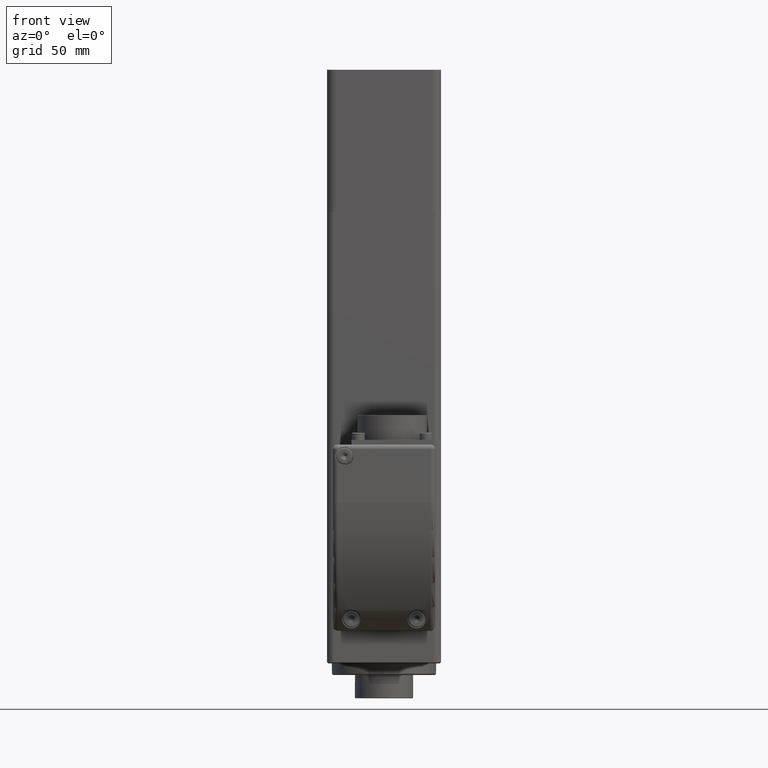
[diagram: clean part render]
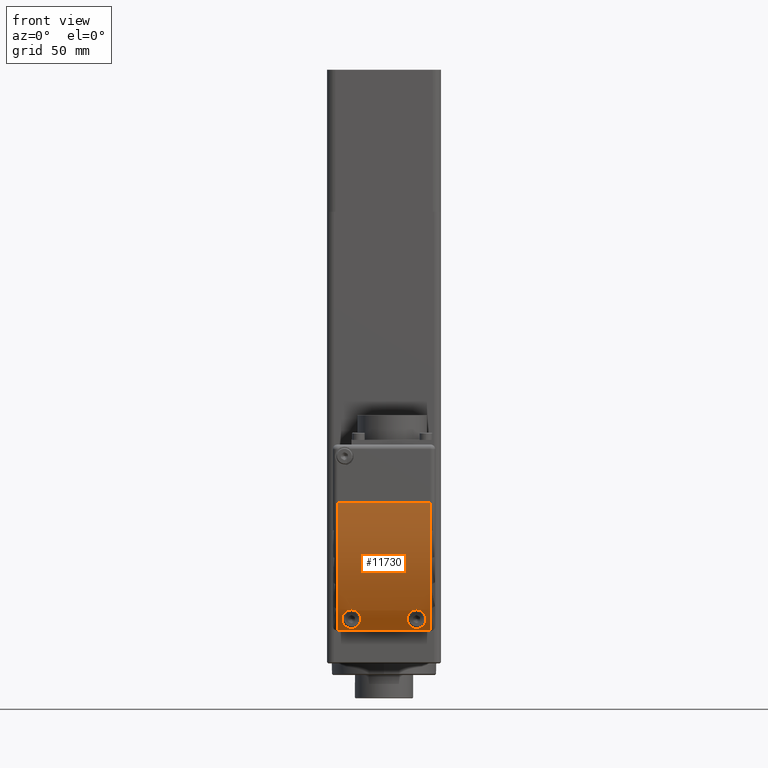
[diagram: same view with one face highlighted and labeled with its STEP entity id]
A machine part, front view. The second image highlights one B-rep face of the part: STEP entity #11730.
In plain terms, the highlighted cylindrical surface (partial cylindrical patch) has radius 80 mm, axis along (1, -0, 0).
Its self-contained STEP definition (entity closure, byte-faithful):
#235=B_SPLINE_CURVE_WITH_KNOTS('',3,(#19185,#19186,#19187,#19188,#19189,
#19190,#19191,#19192,#19193,#19194),.UNSPECIFIED.,.F.,.F.,(4,2,2,2,4),(0.,
0.148690668803476,0.297381337606952,0.489488008699081,0.681594679791209),
 .UNSPECIFIED.);
#236=B_SPLINE_CURVE_WITH_KNOTS('',3,(#19195,#19196,#19197,#19198,#19199,
#19200,#19201,#19202,#19203,#19204,#19205,#19206,#19207,#19208,#19209,#19210,
#19211,#19212,#19213,#19214,#19215,#19216,#19217,#19218,#19219,#19220),
 .UNSPECIFIED.,.F.,.F.,(4,2,2,2,2,2,2,2,2,2,2,2,4),(0.681594679791209,0.881767558495309,
1.08194043719941,1.23189418500287,1.38184793280633,1.53180168060979,1.68175542841325,
1.88192830711735,2.08210118582145,2.27420785691358,2.46631452800571,2.61500519680918,
2.76369586561266),.UNSPECIFIED.);
#237=B_SPLINE_CURVE_WITH_KNOTS('',3,(#19227,#19228,#19229,#19230,#19231,
#19232,#19233,#19234,#19235,#19236),.UNSPECIFIED.,.F.,.F.,(4,2,2,2,4),(0.,
0.148690668803476,0.297381337606952,0.489488008699081,0.681594679791209),
 .UNSPECIFIED.);
#238=B_SPLINE_CURVE_WITH_KNOTS('',3,(#19237,#19238,#19239,#19240,#19241,
#19242,#19243,#19244,#19245,#19246,#19247,#19248,#19249,#19250,#19251,#19252,
#19253,#19254,#19255,#19256,#19257,#19258,#19259,#19260,#19261,#19262),
 .UNSPECIFIED.,.F.,.F.,(4,2,2,2,2,2,2,2,2,2,2,2,4),(0.681594679791209,0.881767558495309,
1.08194043719941,1.23189418500287,1.38184793280633,1.53180168060979,1.68175542841325,
1.88192830711735,2.08210118582145,2.27420785691358,2.46631452800571,2.61500519680919,
2.76369586561266),.UNSPECIFIED.);
#352=FACE_BOUND('',#2387,.T.);
#353=FACE_BOUND('',#2388,.T.);
#508=CYLINDRICAL_SURFACE('',#12845,80.);
#1021=CIRCLE('',#12840,80.);
#1023=CIRCLE('',#12846,80.);
#1609=FACE_OUTER_BOUND('',#2386,.T.);
#2386=EDGE_LOOP('',(#9231,#9232,#9233,#9234));
#2387=EDGE_LOOP('',(#9235,#9236));
#2388=EDGE_LOOP('',(#9237,#9238));
#2730=LINE('',#16756,#3612);
#3297=LINE('',#19422,#4179);
#3612=VECTOR('',#13462,10.);
#4179=VECTOR('',#15555,10.);
#4485=VERTEX_POINT('',#16754);
#4486=VERTEX_POINT('',#16755);
#5122=VERTEX_POINT('',#19182);
#5123=VERTEX_POINT('',#19184);
#5125=VERTEX_POINT('',#19224);
#5126=VERTEX_POINT('',#19226);
#5152=VERTEX_POINT('',#19391);
#5154=VERTEX_POINT('',#19421);
#5570=EDGE_CURVE('',#4485,#4486,#2730,.T.);
#6529=EDGE_CURVE('',#5123,#5122,#235,.T.);
#6530=EDGE_CURVE('',#5122,#5123,#236,.T.);
#6533=EDGE_CURVE('',#5126,#5125,#237,.T.);
#6534=EDGE_CURVE('',#5125,#5126,#238,.T.);
#6578=EDGE_CURVE('',#5152,#4485,#1021,.T.);
#6584=EDGE_CURVE('',#5152,#5154,#3297,.T.);
#6585=EDGE_CURVE('',#4486,#5154,#1023,.T.);
#9231=ORIENTED_EDGE('',*,*,#5570,.F.);
#9232=ORIENTED_EDGE('',*,*,#6578,.F.);
#9233=ORIENTED_EDGE('',*,*,#6584,.T.);
#9234=ORIENTED_EDGE('',*,*,#6585,.F.);
#9235=ORIENTED_EDGE('',*,*,#6529,.T.);
#9236=ORIENTED_EDGE('',*,*,#6530,.T.);
#9237=ORIENTED_EDGE('',*,*,#6533,.T.);
#9238=ORIENTED_EDGE('',*,*,#6534,.T.);
#11730=ADVANCED_FACE('',(#1609,#352,#353),#508,.T.);
#12840=AXIS2_PLACEMENT_3D('',#19410,#15539,#15540);
#12845=AXIS2_PLACEMENT_3D('',#19420,#15553,#15554);
#12846=AXIS2_PLACEMENT_3D('',#19423,#15556,#15557);
#13462=DIRECTION('',(1.,-1.9423925436145E-32,1.38777878078145E-16));
#15539=DIRECTION('center_axis',(-1.,1.9423925436145E-32,-1.38777878078145E-16));
#15540=DIRECTION('ref_axis',(5.13492797797409E-17,-0.929027550025803,-0.370010555650855));
#15553=DIRECTION('center_axis',(1.,-1.9423925436145E-32,1.38777878078145E-16));
#15554=DIRECTION('ref_axis',(-2.49817464566039E-32,-1.,4.00483210827687E-17));
#15555=DIRECTION('',(1.,-1.9423925436145E-32,1.38777878078145E-16));
#15556=DIRECTION('center_axis',(1.,-1.9423925436145E-32,1.38777878078145E-16));
#15557=DIRECTION('ref_axis',(5.13492797797409E-17,-0.929027550025803,-0.370010555650855));
#16754=CARTESIAN_POINT('',(-20.,-125.,55.));
#16755=CARTESIAN_POINT('',(20.,-125.,55.));
#16756=CARTESIAN_POINT('',(3.49999999999999,-125.,55.));
#19182=CARTESIAN_POINT('',(-10.,-107.449979983984,4.99999999999998));
#19184=CARTESIAN_POINT('',(-14.,-110.452272687814,8.99999999999997));
#19185=CARTESIAN_POINT('Ctrl Pts',(-14.,-110.452272687814,8.99999999999997));
#19186=CARTESIAN_POINT('Ctrl Pts',(-13.5043644373218,-110.452272687814,
8.99999999999997));
#19187=CARTESIAN_POINT('Ctrl Pts',(-12.9842180074497,-110.383551826672,
8.90179845756276));
#19188=CARTESIAN_POINT('Ctrl Pts',(-12.0449385792706,-110.117065698936,
8.52612786233119));
#19189=CARTESIAN_POINT('Ctrl Pts',(-11.6254338151647,-109.919410511378,
8.24951082324016));
#19190=CARTESIAN_POINT('Ctrl Pts',(-10.8737621368312,-109.41846830745,7.56065492355102));
#19191=CARTESIAN_POINT('Ctrl Pts',(-10.5354042633323,-109.060197671003,
7.0759950280354));
#19192=CARTESIAN_POINT('Ctrl Pts',(-10.0986940278409,-108.276159473125,
6.04546168572869));
#19193=CARTESIAN_POINT('Ctrl Pts',(-10.,-107.850202215426,5.49987740685386));
#19194=CARTESIAN_POINT('Ctrl Pts',(-10.,-107.449979983984,4.99999999999998));
#19195=CARTESIAN_POINT('Ctrl Pts',(-10.,-107.449979983984,4.99999999999998));
#19196=CARTESIAN_POINT('Ctrl Pts',(-10.,-107.03295315335,4.479133655483));
#19197=CARTESIAN_POINT('Ctrl Pts',(-10.1066112225971,-106.575892285005,
3.92291854395872));
#19198=CARTESIAN_POINT('Ctrl Pts',(-10.5566631162829,-105.702240541963,
2.88765257715664));
#19199=CARTESIAN_POINT('Ctrl Pts',(-10.8995182705529,-105.285750203142,
2.40826245709265));
#19200=CARTESIAN_POINT('Ctrl Pts',(-11.6471070550691,-104.692278043216,
1.73669863528152));
#19201=CARTESIAN_POINT('Ctrl Pts',(-12.0566867318791,-104.451104438248,
1.4684379995195));
#19202=CARTESIAN_POINT('Ctrl Pts',(-12.9827037980638,-104.116863216523,
1.09955072722419));
#19203=CARTESIAN_POINT('Ctrl Pts',(-13.5001541739885,-104.025418253495,
0.999999999999961));
#19204=CARTESIAN_POINT('Ctrl Pts',(-14.4998458260115,-104.025418253495,
0.999999999999961));
#19205=CARTESIAN_POINT('Ctrl Pts',(-15.0172962019362,-104.116863216523,
1.09955072722418));
#19206=CARTESIAN_POINT('Ctrl Pts',(-15.9433132681209,-104.451104438248,
1.46843799951949));
#19207=CARTESIAN_POINT('Ctrl Pts',(-16.352892944931,-104.692278043216,1.73669863528154));
#19208=CARTESIAN_POINT('Ctrl Pts',(-17.1004817294471,-105.285750203142,
2.40826245709266));
#19209=CARTESIAN_POINT('Ctrl Pts',(-17.4433368837171,-105.702240541963,
2.88765257715665));
#19210=CARTESIAN_POINT('Ctrl Pts',(-17.8933887774029,-106.575892285005,
3.92291854395873));
#19211=CARTESIAN_POINT('Ctrl Pts',(-18.,-107.03295315335,4.479133655483));
#19212=CARTESIAN_POINT('Ctrl Pts',(-18.,-107.850202215426,5.49987740685386));
#19213=CARTESIAN_POINT('Ctrl Pts',(-17.9013059721591,-108.276159473125,
6.0454616857287));
#19214=CARTESIAN_POINT('Ctrl Pts',(-17.4645957366677,-109.060197671003,
7.07599502803541));
#19215=CARTESIAN_POINT('Ctrl Pts',(-17.1262378631688,-109.41846830745,7.56065492355102));
#19216=CARTESIAN_POINT('Ctrl Pts',(-16.3745661848353,-109.919410511378,
8.24951082324016));
#19217=CARTESIAN_POINT('Ctrl Pts',(-15.9550614207294,-110.117065698936,
8.52612786233119));
#19218=CARTESIAN_POINT('Ctrl Pts',(-15.0157819925503,-110.383551826672,
8.90179845756276));
#19219=CARTESIAN_POINT('Ctrl Pts',(-14.4956355626783,-110.452272687814,
8.99999999999997));
#19220=CARTESIAN_POINT('Ctrl Pts',(-14.,-110.452272687814,8.99999999999997));
#19224=CARTESIAN_POINT('',(18.,-107.449979983984,4.99999999999998));
#19226=CARTESIAN_POINT('',(14.,-110.452272687814,8.99999999999998));
#19227=CARTESIAN_POINT('Ctrl Pts',(14.,-110.452272687814,8.99999999999998));
#19228=CARTESIAN_POINT('Ctrl Pts',(14.4956355626783,-110.452272687814,8.99999999999998));
#19229=CARTESIAN_POINT('Ctrl Pts',(15.0157819925503,-110.383551826672,8.90179845756277));
#19230=CARTESIAN_POINT('Ctrl Pts',(15.9550614207294,-110.117065698936,8.5261278623312));
#19231=CARTESIAN_POINT('Ctrl Pts',(16.3745661848353,-109.919410511378,8.24951082324017));
#19232=CARTESIAN_POINT('Ctrl Pts',(17.1262378631688,-109.41846830745,7.56065492355103));
#19233=CARTESIAN_POINT('Ctrl Pts',(17.4645957366677,-109.060197671003,7.07599502803541));
#19234=CARTESIAN_POINT('Ctrl Pts',(17.9013059721591,-108.276159473125,6.04546168572869));
#19235=CARTESIAN_POINT('Ctrl Pts',(18.,-107.850202215426,5.49987740685386));
#19236=CARTESIAN_POINT('Ctrl Pts',(18.,-107.449979983984,4.99999999999998));
#19237=CARTESIAN_POINT('Ctrl Pts',(18.,-107.449979983984,4.99999999999998));
#19238=CARTESIAN_POINT('Ctrl Pts',(18.,-107.03295315335,4.479133655483));
#19239=CARTESIAN_POINT('Ctrl Pts',(17.8933887774029,-106.575892285005,3.92291854395872));
#19240=CARTESIAN_POINT('Ctrl Pts',(17.4433368837171,-105.702240541963,2.88765257715664));
#19241=CARTESIAN_POINT('Ctrl Pts',(17.1004817294471,-105.285750203142,2.40826245709265));
#19242=CARTESIAN_POINT('Ctrl Pts',(16.3528929449309,-104.692278043216,1.73669863528152));
#19243=CARTESIAN_POINT('Ctrl Pts',(15.9433132681209,-104.451104438248,1.46843799951949));
#19244=CARTESIAN_POINT('Ctrl Pts',(15.0172962019362,-104.116863216523,1.09955072722419));
#19245=CARTESIAN_POINT('Ctrl Pts',(14.4998458260115,-104.025418253495,0.999999999999961));
#19246=CARTESIAN_POINT('Ctrl Pts',(13.5001541739885,-104.025418253495,0.99999999999997));
#19247=CARTESIAN_POINT('Ctrl Pts',(12.9827037980638,-104.116863216523,1.09955072722418));
#19248=CARTESIAN_POINT('Ctrl Pts',(12.0566867318791,-104.451104438248,1.46843799951949));
#19249=CARTESIAN_POINT('Ctrl Pts',(11.6471070550691,-104.692278043216,1.73669863528154));
#19250=CARTESIAN_POINT('Ctrl Pts',(10.8995182705529,-105.285750203142,2.40826245709265));
#19251=CARTESIAN_POINT('Ctrl Pts',(10.5566631162829,-105.702240541963,2.88765257715664));
#19252=CARTESIAN_POINT('Ctrl Pts',(10.1066112225971,-106.575892285005,3.92291854395872));
#19253=CARTESIAN_POINT('Ctrl Pts',(10.,-107.03295315335,4.47913365548299));
#19254=CARTESIAN_POINT('Ctrl Pts',(10.,-107.850202215426,5.49987740685386));
#19255=CARTESIAN_POINT('Ctrl Pts',(10.0986940278409,-108.276159473125,6.04546168572869));
#19256=CARTESIAN_POINT('Ctrl Pts',(10.5354042633323,-109.060197671003,7.0759950280354));
#19257=CARTESIAN_POINT('Ctrl Pts',(10.8737621368312,-109.41846830745,7.56065492355102));
#19258=CARTESIAN_POINT('Ctrl Pts',(11.6254338151647,-109.919410511378,8.24951082324016));
#19259=CARTESIAN_POINT('Ctrl Pts',(12.0449385792706,-110.117065698936,8.52612786233119));
#19260=CARTESIAN_POINT('Ctrl Pts',(12.9842180074497,-110.383551826672,8.90179845756277));
#19261=CARTESIAN_POINT('Ctrl Pts',(13.5043644373217,-110.452272687814,8.99999999999998));
#19262=CARTESIAN_POINT('Ctrl Pts',(14.,-110.452272687814,8.99999999999998));
#19391=CARTESIAN_POINT('',(-20.,-103.094750193111,-1.77635683940025E-14));
#19410=CARTESIAN_POINT('Origin',(-20.,-45.,55.));
#19420=CARTESIAN_POINT('Origin',(3.49999999999999,-45.,55.));
#19421=CARTESIAN_POINT('',(20.,-103.094750193111,-1.77635683940025E-14));
#19422=CARTESIAN_POINT('',(3.5,-103.094750193111,-1.77635683940025E-14));
#19423=CARTESIAN_POINT('Origin',(20.,-45.,55.));